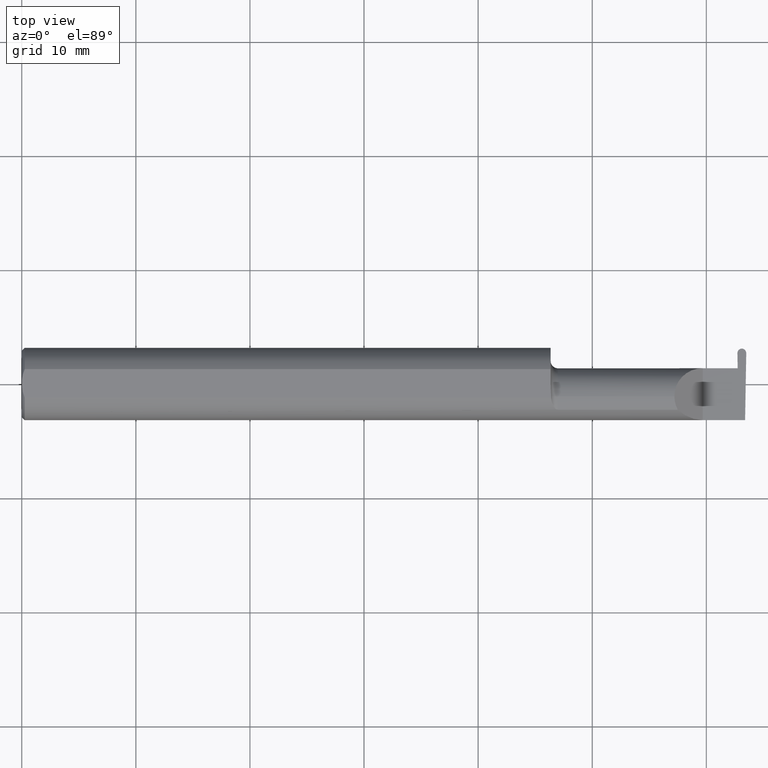
[diagram: clean part render]
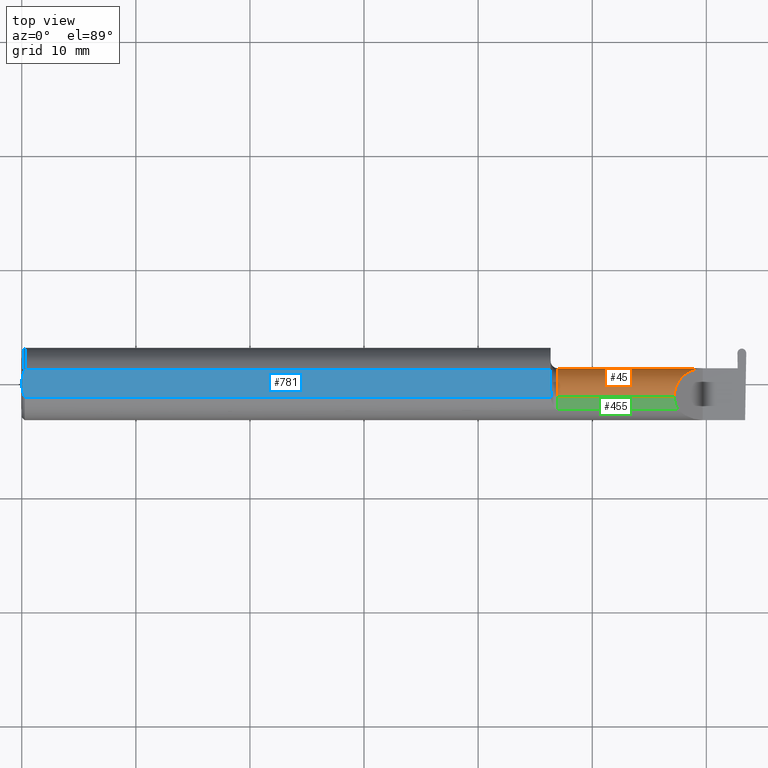
[diagram: same view with three faces highlighted in distinct colors, each labeled with its STEP entity id]
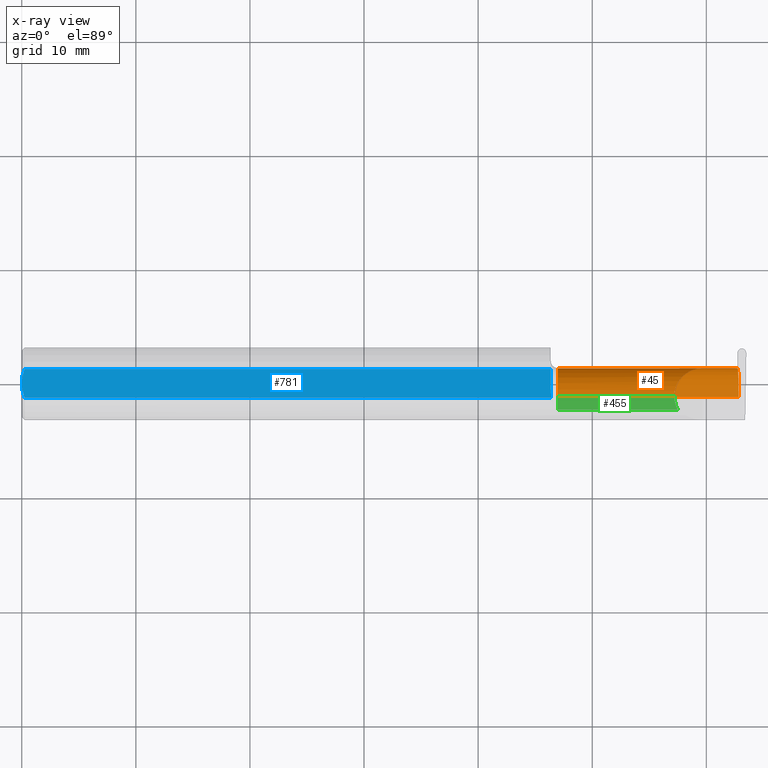
[diagram: x-ray of the same camera — body ghosted, the three highlighted faces saturated]
A machine part, top view with three faces highlighted in distinct colors.
The next image is the same camera in x-ray (body ghosted, the three faces saturated) — at least one of them is partly hidden behind the body in this view.
Their STEP definitions:

[orange] entity #45 — the highlighted cylindrical surface (edge-blend (fillet) strip) has radius 2.4892 mm, axis along (-1, -0, -0).
#32 = EDGE_CURVE ( 'NONE', #235, #686, #364, .T. ) ;
#34 = CARTESIAN_POINT ( 'NONE',  ( 2.464200446367434516, 0.05399999999999999245, 0.000000000000000000 ) ) ;
#36 = ORIENTED_EDGE ( 'NONE', *, *, #135, .F. ) ;
#38 = LINE ( 'NONE', #286, #395 ) ;
#45 = ADVANCED_FACE ( 'NONE', ( #561 ), #557, .T. ) ;
#71 = DIRECTION ( 'NONE',  ( -1.000000000000000000, -0.000000000000000000, -0.000000000000000000 ) ) ;
#77 = ORIENTED_EDGE ( 'NONE', *, *, #445, .T. ) ;
#78 = CARTESIAN_POINT ( 'NONE',  ( 2.350000000000000089, 0.05399999999999997163, 8.266365894244625705E-17 ) ) ;
#84 = VECTOR ( 'NONE', #265, 39.37007874015748143 ) ;
#85 = CARTESIAN_POINT ( 'NONE',  ( 2.292592929112562405, 0.05399999999999997163, 0.05740707088743673275 ) ) ;
#113 = ORIENTED_EDGE ( 'NONE', *, *, #32, .F. ) ;
#128 = CARTESIAN_POINT ( 'NONE',  ( 1.824999999999999956, -0.04400000000000004602, 0.09800000000000003153 ) ) ;
#129 = CARTESIAN_POINT ( 'NONE',  ( 1.849999999999999867, -0.04400000000000004602, 0.09800000000000003153 ) ) ;
#135 = EDGE_CURVE ( 'NONE', #710, #408, #331, .T. ) ;
#150 = CIRCLE ( 'NONE', #288, 0.09800000000000003153 ) ;
#164 = CARTESIAN_POINT ( 'NONE',  ( 2.473987104431409012, -0.04400000000000004602, -0.09800000000000001765 ) ) ;
#180 = ORIENTED_EDGE ( 'NONE', *, *, #754, .F. ) ;
#194 = LINE ( 'NONE', #251, #84 ) ;
#209 = CARTESIAN_POINT ( 'NONE',  ( 2.473919830754201854, 0.01027834358092162559, -0.09800000000000004541 ) ) ;
#235 = VERTEX_POINT ( 'NONE', #275 ) ;
#236 = DIRECTION ( 'NONE',  ( -1.000000000000000000, -0.000000000000000000, -0.000000000000000000 ) ) ;
#251 = CARTESIAN_POINT ( 'NONE',  ( 1.824999999999999956, 0.05399999999999997163, 8.266365894244625705E-17 ) ) ;
#265 = DIRECTION ( 'NONE',  ( 1.000000000000000000, 0.000000000000000000, 0.000000000000000000 ) ) ;
#275 = CARTESIAN_POINT ( 'NONE',  ( 2.463961723292897421, 0.05376127692546276565, -0.006836134426924275233 ) ) ;
#278 = CARTESIAN_POINT ( 'NONE',  ( 2.470630317148074795, 0.05376127692546955883, -0.006836134426924434827 ) ) ;
#286 = CARTESIAN_POINT ( 'NONE',  ( 1.824999999999999956, -0.04400000000000003908, -0.09800000000000003153 ) ) ;
#288 = AXIS2_PLACEMENT_3D ( 'NONE', #529, #236, #679 ) ;
#313 = DIRECTION ( 'NONE',  ( -1.000000000000000000, -0.000000000000000000, -0.000000000000000000 ) ) ;
#315 = ORIENTED_EDGE ( 'NONE', *, *, #386, .F. ) ;
#331 =( BOUNDED_CURVE ( )  B_SPLINE_CURVE ( 3, ( #584, #209, #790, #278 ),
 .UNSPECIFIED., .F., .T. ) 
 B_SPLINE_CURVE_WITH_KNOTS ( ( 4, 4 ),
 ( 3.176499238629679756, 4.677482395344806143 ),
 .UNSPECIFIED. ) 
 CURVE ( )  GEOMETRIC_REPRESENTATION_ITEM ( )  RATIONAL_B_SPLINE_CURVE ( ( 1.000000000000000000, 0.8209024677461128627, 0.8209024677461128627, 1.000000000000000000 ) ) 
 REPRESENTATION_ITEM ( '' )  );
#344 = ORIENTED_EDGE ( 'NONE', *, *, #680, .F. ) ;
#358 = VERTEX_POINT ( 'NONE', #129 ) ;
#364 = B_SPLINE_CURVE_WITH_KNOTS ( 'NONE', 3,
 ( #765, #571, #760, #565 ),
 .UNSPECIFIED., .F., .F.,
 ( 4, 4 ),
 ( 0.000000000000000000, 1.000000000000000000 ),
 .UNSPECIFIED. ) ;
#366 = VECTOR ( 'NONE', #313, 39.37007874015748143 ) ;
#370 = CARTESIAN_POINT ( 'NONE',  ( 1.824999999999999956, -0.04400000000000004602, 0.000000000000000000 ) ) ;
#371 = LINE ( 'NONE', #440, #545 ) ;
#386 = EDGE_CURVE ( 'NONE', #408, #235, #371, .T. ) ;
#395 = VECTOR ( 'NONE', #684, 39.37007874015748143 ) ;
#399 = CARTESIAN_POINT ( 'NONE',  ( 2.251999999999998892, -0.04400000000000004602, 0.09800000000000003153 ) ) ;
#408 = VERTEX_POINT ( 'NONE', #696 ) ;
#414 = VERTEX_POINT ( 'NONE', #500 ) ;
#432 = ORIENTED_EDGE ( 'NONE', *, *, #718, .T. ) ;
#440 = CARTESIAN_POINT ( 'NONE',  ( 1.825000000000000400, 0.05376127692546629755, -0.006836134426874000344 ) ) ;
#445 = EDGE_CURVE ( 'NONE', #542, #686, #194, .T. ) ;
#481 = EDGE_CURVE ( 'NONE', #554, #542, #516, .T. ) ;
#500 = CARTESIAN_POINT ( 'NONE',  ( 1.849999999999999867, -0.04400000000000003908, -0.09800000000000003153 ) ) ;
#502 = AXIS2_PLACEMENT_3D ( 'NONE', #370, #503, #814 ) ;
#503 = DIRECTION ( 'NONE',  ( -1.000000000000000000, -0.000000000000000000, -0.000000000000000000 ) ) ;
#516 =( BOUNDED_CURVE ( )  B_SPLINE_CURVE ( 3, ( #399, #713, #85, #78 ),
 .UNSPECIFIED., .F., .F. ) 
 B_SPLINE_CURVE_WITH_KNOTS ( ( 4, 4 ),
 ( 0.000000000000000000, 1.570796326794896114 ),
 .UNSPECIFIED. ) 
 CURVE ( )  GEOMETRIC_REPRESENTATION_ITEM ( )  RATIONAL_B_SPLINE_CURVE ( ( 1.000000000000000000, 0.8047378541243650485, 0.8047378541243650485, 1.000000000000000000 ) ) 
 REPRESENTATION_ITEM ( '' )  );
#517 = CARTESIAN_POINT ( 'NONE',  ( 2.350000000000000089, 0.05399999999999997163, 8.266365894244625705E-17 ) ) ;
#520 = CARTESIAN_POINT ( 'NONE',  ( 2.251999999999998892, -0.04400000000000004602, 0.09800000000000003153 ) ) ;
#529 = CARTESIAN_POINT ( 'NONE',  ( 1.849999999999999867, -0.04400000000000004602, 0.000000000000000000 ) ) ;
#542 = VERTEX_POINT ( 'NONE', #517 ) ;
#545 = VECTOR ( 'NONE', #71, 39.37007874015748143 ) ;
#554 = VERTEX_POINT ( 'NONE', #520 ) ;
#557 = CYLINDRICAL_SURFACE ( 'NONE', #502, 0.09800000000000003153 ) ;
#561 = FACE_OUTER_BOUND ( 'NONE', #626, .T. ) ;
#565 = CARTESIAN_POINT ( 'NONE',  ( 2.464200446367434516, 0.05399999999999999245, 0.000000000000000000 ) ) ;
#571 = CARTESIAN_POINT ( 'NONE',  ( 2.464041297651076157, 0.05384085128364183431, -0.004557422951282846975 ) ) ;
#584 = CARTESIAN_POINT ( 'NONE',  ( 2.473987104431409012, -0.04400000000000004602, -0.09800000000000001765 ) ) ;
#626 = EDGE_LOOP ( 'NONE', ( #36, #432, #344, #180, #689, #77, #113, #315 ) ) ;
#634 = LINE ( 'NONE', #128, #366 ) ;
#679 = DIRECTION ( 'NONE',  ( 0.000000000000000000, 0.000000000000000000, 1.000000000000000000 ) ) ;
#680 = EDGE_CURVE ( 'NONE', #358, #414, #150, .T. ) ;
#684 = DIRECTION ( 'NONE',  ( -1.000000000000000000, -0.000000000000000000, -0.000000000000000000 ) ) ;
#686 = VERTEX_POINT ( 'NONE', #34 ) ;
#689 = ORIENTED_EDGE ( 'NONE', *, *, #481, .T. ) ;
#696 = CARTESIAN_POINT ( 'NONE',  ( 2.470630317148074795, 0.05376127692546955883, -0.006836134426924434827 ) ) ;
#710 = VERTEX_POINT ( 'NONE', #164 ) ;
#713 = CARTESIAN_POINT ( 'NONE',  ( 2.251999999999999336, 0.01340707088743663469, 0.09799999999999998990 ) ) ;
#718 = EDGE_CURVE ( 'NONE', #710, #414, #38, .T. ) ;
#754 = EDGE_CURVE ( 'NONE', #554, #358, #634, .T. ) ;
#760 = CARTESIAN_POINT ( 'NONE',  ( 2.464120872009255336, 0.05392042564182091685, -0.002278711475641423054 ) ) ;
#765 = CARTESIAN_POINT ( 'NONE',  ( 2.463961723292897421, 0.05376127692546276565, -0.006836134426924275233 ) ) ;
#790 = CARTESIAN_POINT ( 'NONE',  ( 2.472556783207862097, 0.04997501107658577912, -0.06098225869090258960 ) ) ;
#814 = DIRECTION ( 'NONE',  ( 0.000000000000000000, 0.000000000000000000, 1.000000000000000000 ) ) ;

[blue] entity #781 — the highlighted planar face has unit normal (0, 0, 1).
#1 = CARTESIAN_POINT ( 'NONE',  ( 1.826314561435346207, -0.04400000000000004602, 0.1149999999999999217 ) ) ;
#14 = B_SPLINE_CURVE_WITH_KNOTS ( 'NONE', 3,
 ( #580, #214, #271, #391, #577, #148 ),
 .UNSPECIFIED., .F., .F.,
 ( 4, 2, 4 ),
 ( 0.001061950514642623312, 0.001696734447512964709, 0.002331518380383306322 ),
 .UNSPECIFIED. ) ;
#40 = VERTEX_POINT ( 'NONE', #447 ) ;
#57 = CARTESIAN_POINT ( 'NONE',  ( 1.826049928736321215, -0.02945016372790500853, 0.1149999999999999356 ) ) ;
#59 = ORIENTED_EDGE ( 'NONE', *, *, #466, .T. ) ;
#64 = CARTESIAN_POINT ( 'NONE',  ( 1.826314561435345762, -0.03672135622230197904, 0.1149999999999999356 ) ) ;
#70 = EDGE_CURVE ( 'NONE', #40, #162, #263, .T. ) ;
#97 = VECTOR ( 'NONE', #314, 39.37007874015748143 ) ;
#104 = CARTESIAN_POINT ( 'NONE',  ( 0.003880275146595849479, 0.03337499979622342988, 0.1149999999999999217 ) ) ;
#117 = CARTESIAN_POINT ( 'NONE',  ( 0.000000000000000000, 3.414809992080329023E-17, 0.1149999999999999217 ) ) ;
#119 = CARTESIAN_POINT ( 'NONE',  ( 1.824999999999999734, -0.007643795319155096551, 0.1149999999999999356 ) ) ;
#148 = CARTESIAN_POINT ( 'NONE',  ( 0.000000000000000000, 3.414809992080329023E-17, 0.1149999999999999217 ) ) ;
#162 = VERTEX_POINT ( 'NONE', #222 ) ;
#177 = VERTEX_POINT ( 'NONE', #456 ) ;
#185 = EDGE_CURVE ( 'NONE', #177, #318, #14, .T. ) ;
#189 = CARTESIAN_POINT ( 'NONE',  ( 0.000000000000000000, -0.04898979485566374442, 0.1149999999999999217 ) ) ;
#201 = CARTESIAN_POINT ( 'NONE',  ( 1.824999999999999956, 0.1250000000000000278, 0.1149999999999999217 ) ) ;
#203 = CARTESIAN_POINT ( 'NONE',  ( 1.824999999999999956, -0.0003651515414570668193, 0.1149999999999999217 ) ) ;
#204 = CARTESIAN_POINT ( 'NONE',  ( 0.000000000000000000, 0.04898979485566374442, 0.1149999999999999217 ) ) ;
#214 = CARTESIAN_POINT ( 'NONE',  ( 0.006956794985978487743, -0.04122489957750442163, 0.1149999999999999356 ) ) ;
#222 = CARTESIAN_POINT ( 'NONE',  ( 0.01000000000000042348, 0.04898979485566374442, 0.1149999999999999217 ) ) ;
#231 = CARTESIAN_POINT ( 'NONE',  ( 1.826314561435345762, -0.04483155449642588219, 0.1149999999999999356 ) ) ;
#232 = VECTOR ( 'NONE', #245, 39.37007874015748143 ) ;
#245 = DIRECTION ( 'NONE',  ( 1.000000000000000000, 0.000000000000000000, 0.000000000000000000 ) ) ;
#247 = DIRECTION ( 'NONE',  ( -1.000000000000000000, -0.000000000000000000, -0.000000000000000000 ) ) ;
#248 = B_SPLINE_CURVE_WITH_KNOTS ( 'NONE', 3,
 ( #380, #64, #57, #767, #119, #506 ),
 .UNSPECIFIED., .F., .F.,
 ( 4, 2, 4 ),
 ( 0.009445492519198586678, 0.009997058688341184038, 0.01054862485748378140 ),
 .UNSPECIFIED. ) ;
#256 = AXIS2_PLACEMENT_3D ( 'NONE', #367, #629, #623 ) ;
#263 = LINE ( 'NONE', #204, #624 ) ;
#271 = CARTESIAN_POINT ( 'NONE',  ( 0.004414142251465132810, -0.03315347577847933824, 0.1149999999999999356 ) ) ;
#285 = ORIENTED_EDGE ( 'NONE', *, *, #70, .T. ) ;
#314 = DIRECTION ( 'NONE',  ( 0.000000000000000000, 1.000000000000000000, 0.000000000000000000 ) ) ;
#318 = VERTEX_POINT ( 'NONE', #117 ) ;
#330 = EDGE_CURVE ( 'NONE', #546, #40, #507, .T. ) ;
#348 = ORIENTED_EDGE ( 'NONE', *, *, #330, .T. ) ;
#367 = CARTESIAN_POINT ( 'NONE',  ( 2.753179778023443269, 0.1250000000000000278, 0.1149999999999999217 ) ) ;
#380 = CARTESIAN_POINT ( 'NONE',  ( 1.826314561435346207, -0.04400000000000004602, 0.1149999999999999217 ) ) ;
#391 = CARTESIAN_POINT ( 'NONE',  ( 0.0009328476361608245343, -0.01672844127736827086, 0.1149999999999999217 ) ) ;
#412 = CARTESIAN_POINT ( 'NONE',  ( 1.826299368641400855, -0.04732662288241423765, 0.1149999999999999356 ) ) ;
#418 = ORIENTED_EDGE ( 'NONE', *, *, #185, .F. ) ;
#436 = LINE ( 'NONE', #189, #232 ) ;
#438 = FACE_OUTER_BOUND ( 'NONE', #574, .T. ) ;
#447 = CARTESIAN_POINT ( 'NONE',  ( 1.824999999999999956, 0.04898979485566374442, 0.1149999999999999217 ) ) ;
#456 = CARTESIAN_POINT ( 'NONE',  ( 0.01000000000000042348, -0.04898979485566374442, 0.1149999999999999217 ) ) ;
#466 = EDGE_CURVE ( 'NONE', #177, #708, #436, .T. ) ;
#470 = CARTESIAN_POINT ( 'NONE',  ( 1.826278290187167919, -0.04898979485482030799, 0.1149999999999999217 ) ) ;
#482 = CARTESIAN_POINT ( 'NONE',  ( 1.826314561435346207, -0.04400000000000004602, 0.1149999999999999217 ) ) ;
#484 = ORIENTED_EDGE ( 'NONE', *, *, #618, .F. ) ;
#506 = CARTESIAN_POINT ( 'NONE',  ( 1.824999999999999956, -0.0003651515414570668193, 0.1149999999999999217 ) ) ;
#507 = LINE ( 'NONE', #201, #97 ) ;
#543 = CARTESIAN_POINT ( 'NONE',  ( 1.826290282237992502, -0.04815824739940594706, 0.1149999999999999356 ) ) ;
#546 = VERTEX_POINT ( 'NONE', #203 ) ;
#548 = CARTESIAN_POINT ( 'NONE',  ( 0.000000000000000000, 3.414809992080329023E-17, 0.1149999999999999217 ) ) ;
#551 = PLANE ( 'NONE',  #256 ) ;
#574 = EDGE_LOOP ( 'NONE', ( #59, #717, #690, #348, #285, #484, #418 ) ) ;
#577 = CARTESIAN_POINT ( 'NONE',  ( 1.541666659510484467E-16, -0.008419750986449443114, 0.1149999999999999356 ) ) ;
#580 = CARTESIAN_POINT ( 'NONE',  ( 0.01000000000000042348, -0.04898979485566374442, 0.1149999999999999217 ) ) ;
#596 = CARTESIAN_POINT ( 'NONE',  ( 0.01000000000000042348, 0.04898979485566374442, 0.1149999999999999217 ) ) ;
#618 = EDGE_CURVE ( 'NONE', #318, #162, #659, .T. ) ;
#623 = DIRECTION ( 'NONE',  ( 1.000000000000000000, 0.000000000000000000, -0.000000000000000000 ) ) ;
#624 = VECTOR ( 'NONE', #247, 39.37007874015748143 ) ;
#629 = DIRECTION ( 'NONE',  ( 0.000000000000000000, 0.000000000000000000, 1.000000000000000000 ) ) ;
#659 = B_SPLINE_CURVE_WITH_KNOTS ( 'NONE', 3,
 ( #548, #669, #104, #596 ),
 .UNSPECIFIED., .F., .F.,
 ( 4, 4 ),
 ( 0.002331518380383306322, 0.003601362264757408584 ),
 .UNSPECIFIED. ) ;
#664 = CARTESIAN_POINT ( 'NONE',  ( 1.826311508822838103, -0.04566321385529986676, 0.1149999999999999217 ) ) ;
#669 = CARTESIAN_POINT ( 'NONE',  ( 1.642610067308552155E-16, 0.01684316307400865464, 0.1149999999999999217 ) ) ;
#690 = ORIENTED_EDGE ( 'NONE', *, *, #805, .T. ) ;
#691 = EDGE_CURVE ( 'NONE', #708, #737, #745, .T. ) ;
#708 = VERTEX_POINT ( 'NONE', #743 ) ;
#717 = ORIENTED_EDGE ( 'NONE', *, *, #691, .T. ) ;
#737 = VERTEX_POINT ( 'NONE', #1 ) ;
#743 = CARTESIAN_POINT ( 'NONE',  ( 1.826278290187167919, -0.04898979485482030799, 0.1149999999999999217 ) ) ;
#745 = B_SPLINE_CURVE_WITH_KNOTS ( 'NONE', 3,
 ( #470, #543, #412, #664, #231, #482 ),
 .UNSPECIFIED., .F., .F.,
 ( 4, 2, 4 ),
 ( 0.009319464280412609325, 0.009382478399805598002, 0.009445492519198586678 ),
 .UNSPECIFIED. ) ;
#767 = CARTESIAN_POINT ( 'NONE',  ( 1.825386034718894157, -0.01491156948752241085, 0.1149999999999999217 ) ) ;
#781 = ADVANCED_FACE ( 'NONE', ( #438 ), #551, .T. ) ;
#805 = EDGE_CURVE ( 'NONE', #737, #546, #248, .T. ) ;

[green] entity #455 — the highlighted cylindrical surface (edge-blend (fillet) strip) has radius 2.4892 mm, axis along (-1, -0, -0).
#24 = CARTESIAN_POINT ( 'NONE',  ( 2.263691591372603895, -0.09042045454545419303, 0.08630840862739529162 ) ) ;
#54 = DIRECTION ( 'NONE',  ( -1.000000000000000000, -0.000000000000000000, -0.000000000000000000 ) ) ;
#74 = VECTOR ( 'NONE', #311, 39.37007874015748143 ) ;
#81 = CIRCLE ( 'NONE', #292, 0.09800000000000003153 ) ;
#105 = EDGE_CURVE ( 'NONE', #112, #358, #81, .T. ) ;
#112 = VERTEX_POINT ( 'NONE', #270 ) ;
#128 = CARTESIAN_POINT ( 'NONE',  ( 1.824999999999999956, -0.04400000000000004602, 0.09800000000000003153 ) ) ;
#129 = CARTESIAN_POINT ( 'NONE',  ( 1.849999999999999867, -0.04400000000000004602, 0.09800000000000003153 ) ) ;
#130 =( BOUNDED_CURVE ( )  B_SPLINE_CURVE ( 3, ( #24, #143, #458, #273 ),
 .UNSPECIFIED., .F., .F. ) 
 B_SPLINE_CURVE_WITH_KNOTS ( ( 4, 4 ),
 ( 5.789722842198298025, 6.283185307179586232 ),
 .UNSPECIFIED. ) 
 CURVE ( )  GEOMETRIC_REPRESENTATION_ITEM ( )  RATIONAL_B_SPLINE_CURVE ( ( 1.000000000000000000, 0.9798106333074688701, 0.9798106333074688701, 1.000000000000000000 ) ) 
 REPRESENTATION_ITEM ( '' )  );
#140 = CARTESIAN_POINT ( 'NONE',  ( 1.824999999999999956, -0.04400000000000004602, 0.000000000000000000 ) ) ;
#143 = CARTESIAN_POINT ( 'NONE',  ( 2.255977500337024377, -0.07607783494366260335, 0.09402249966297457351 ) ) ;
#212 = CARTESIAN_POINT ( 'NONE',  ( 1.849999999999999867, -0.04400000000000004602, 0.000000000000000000 ) ) ;
#226 = ORIENTED_EDGE ( 'NONE', *, *, #539, .T. ) ;
#230 = VERTEX_POINT ( 'NONE', #593 ) ;
#243 = ORIENTED_EDGE ( 'NONE', *, *, #105, .F. ) ;
#261 = FACE_OUTER_BOUND ( 'NONE', #319, .T. ) ;
#270 = CARTESIAN_POINT ( 'NONE',  ( 1.849999999999999867, -0.09042045454545430405, 0.08630840862739518060 ) ) ;
#273 = CARTESIAN_POINT ( 'NONE',  ( 2.251999999999998892, -0.04400000000000004602, 0.09800000000000003153 ) ) ;
#292 = AXIS2_PLACEMENT_3D ( 'NONE', #212, #513, #530 ) ;
#311 = DIRECTION ( 'NONE',  ( 1.000000000000000000, 0.000000000000000000, 0.000000000000000000 ) ) ;
#313 = DIRECTION ( 'NONE',  ( -1.000000000000000000, -0.000000000000000000, -0.000000000000000000 ) ) ;
#319 = EDGE_LOOP ( 'NONE', ( #226, #535, #243, #647 ) ) ;
#357 = EDGE_CURVE ( 'NONE', #112, #230, #749, .T. ) ;
#358 = VERTEX_POINT ( 'NONE', #129 ) ;
#366 = VECTOR ( 'NONE', #313, 39.37007874015748143 ) ;
#382 = DIRECTION ( 'NONE',  ( 0.000000000000000000, 0.000000000000000000, 1.000000000000000000 ) ) ;
#455 = ADVANCED_FACE ( 'NONE', ( #261 ), #496, .T. ) ;
#458 = CARTESIAN_POINT ( 'NONE',  ( 2.251999999999998892, -0.06028551311893192571, 0.09800000000000003153 ) ) ;
#496 = CYLINDRICAL_SURFACE ( 'NONE', #698, 0.09800000000000003153 ) ;
#513 = DIRECTION ( 'NONE',  ( -1.000000000000000000, -0.000000000000000000, -0.000000000000000000 ) ) ;
#520 = CARTESIAN_POINT ( 'NONE',  ( 2.251999999999998892, -0.04400000000000004602, 0.09800000000000003153 ) ) ;
#530 = DIRECTION ( 'NONE',  ( 0.000000000000000000, 0.000000000000000000, 1.000000000000000000 ) ) ;
#535 = ORIENTED_EDGE ( 'NONE', *, *, #754, .T. ) ;
#539 = EDGE_CURVE ( 'NONE', #230, #554, #130, .T. ) ;
#554 = VERTEX_POINT ( 'NONE', #520 ) ;
#593 = CARTESIAN_POINT ( 'NONE',  ( 2.263691591372603895, -0.09042045454545419303, 0.08630840862739529162 ) ) ;
#634 = LINE ( 'NONE', #128, #366 ) ;
#647 = ORIENTED_EDGE ( 'NONE', *, *, #357, .T. ) ;
#698 = AXIS2_PLACEMENT_3D ( 'NONE', #140, #54, #382 ) ;
#749 = LINE ( 'NONE', #768, #74 ) ;
#754 = EDGE_CURVE ( 'NONE', #554, #358, #634, .T. ) ;
#768 = CARTESIAN_POINT ( 'NONE',  ( 2.159734615000000080, -0.09042045454545441507, 0.08630840862739512509 ) ) ;